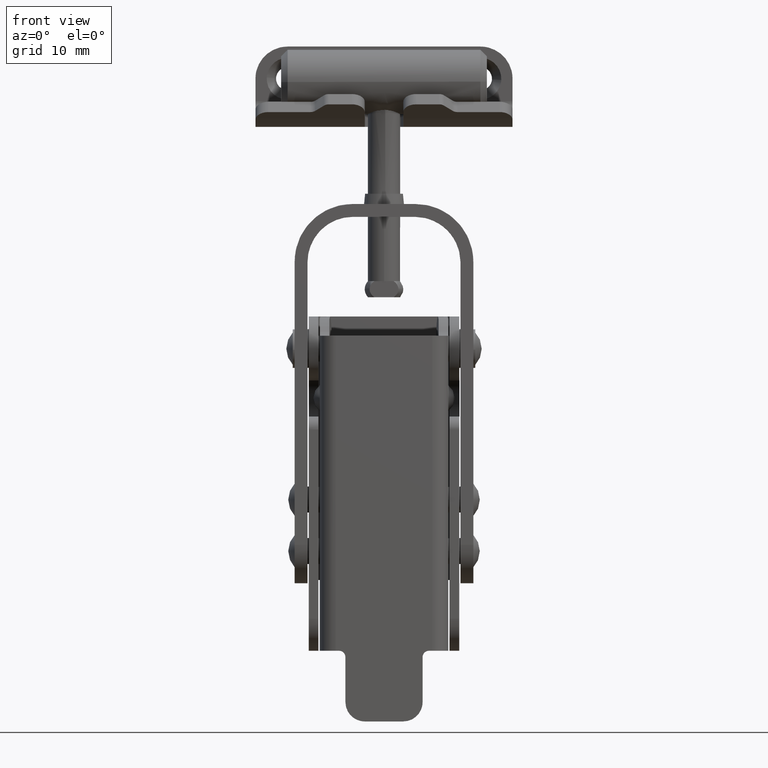
[diagram: clean part render]
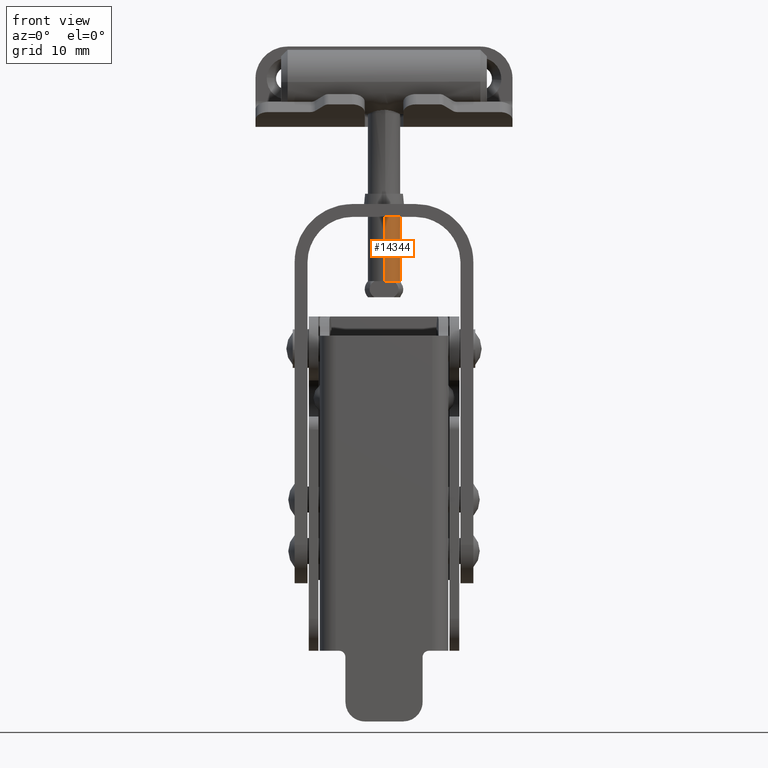
[diagram: same view with one face highlighted and labeled with its STEP entity id]
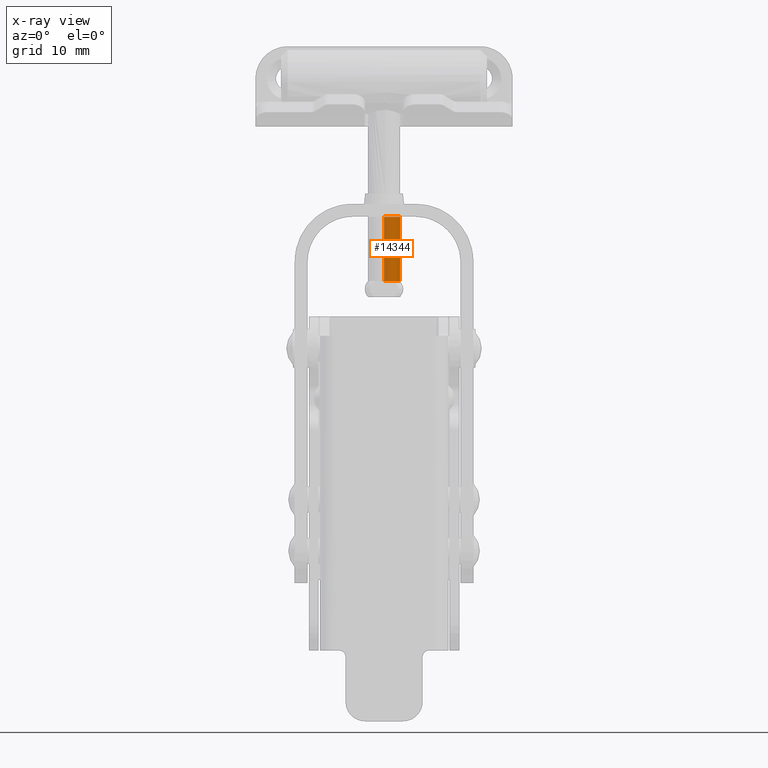
[diagram: x-ray of the same camera — body ghosted, the highlighted face saturated]
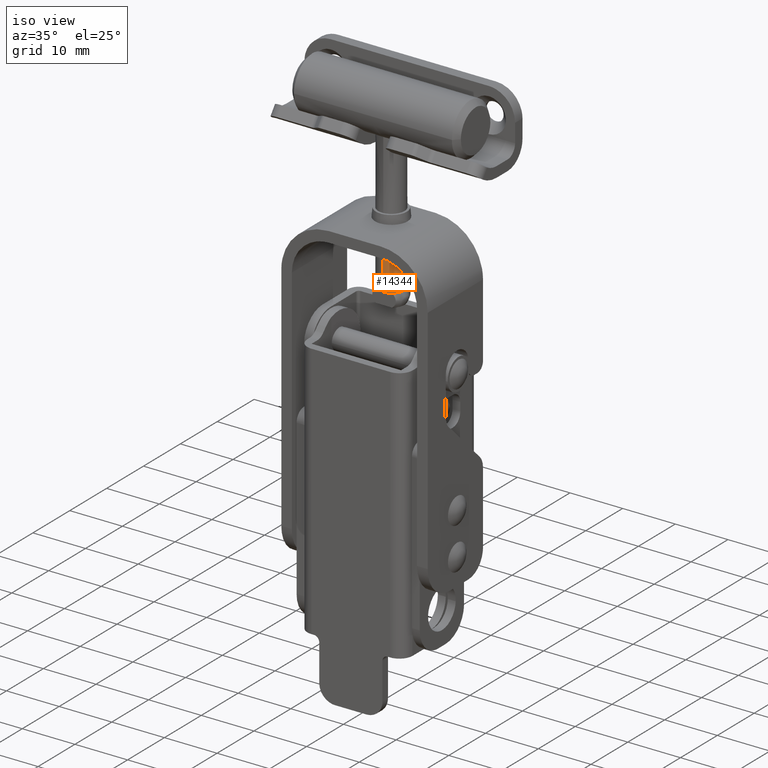
[diagram: same view with one face highlighted and labeled with its STEP entity id]
A machine part, front view. The second image highlights one B-rep face of the part: STEP entity #14344.
The next image is the same camera in x-ray: the body ghosted, the highlighted face saturated — about 0% of this face is hidden behind the body in this view.
A second angle (iso view) of the same face is appended — the face is thin or edge-on in the first view.
In plain terms, the highlighted face is a freeform B-spline surface patch.
Its self-contained STEP definition (entity closure, byte-faithful):
#13192=CARTESIAN_POINT('',(1.500000000000000,-5.0,18.500000003466049));
#13193=VERTEX_POINT('',#13192);
#13255=CARTESIAN_POINT('',(1.500000000000050,-9.0,18.500000003466049));
#13256=VERTEX_POINT('',#13255);
#13388=CARTESIAN_POINT('',(1.500000000000000,-5.0,18.500000003466049));
#13389=CARTESIAN_POINT('',(1.664236243239850,-5.123113325030843,18.500000003466031));
#13390=CARTESIAN_POINT('',(1.935803832532588,-5.384811232831665,18.500000003466081));
#13391=CARTESIAN_POINT('',(2.261540720034036,-5.882370314264942,18.500000003466059));
#13392=CARTESIAN_POINT('',(2.452415790731022,-6.409012371727478,18.500000003466042));
#13393=CARTESIAN_POINT('',(2.519754151118534,-6.987653915109714,18.500000003466070));
#13394=CARTESIAN_POINT('',(2.463161969635743,-7.543930691694025,18.500000003466049));
#13395=CARTESIAN_POINT('',(2.264374307097860,-8.118279147145360,18.500000003466081));
#13396=CARTESIAN_POINT('',(1.937571660352212,-8.617509513523086,18.500000003465949));
#13397=CARTESIAN_POINT('',(1.644897381691430,-8.891355687820504,18.500000003466209));
#13398=CARTESIAN_POINT('',(1.500000000000050,-9.0,18.500000003466049));
#13399=B_SPLINE_CURVE_WITH_KNOTS('',3,(#13388,#13389,#13390,#13391,#13392,#13393,#13394,#13395,#13396,#13397,#13398),.UNSPECIFIED.,.F.,.U.,(4,1,1,1,1,1,1,1,4),(0.000000211426577,0.615765962402910,1.122905892312607,1.774941539910145,2.282081645820571,2.861576109242598,3.441164338033892,4.093198953358128,4.636516642672792),.UNSPECIFIED.);
#13400=EDGE_CURVE('',#13193,#13256,#13399,.T.);
#13587=CARTESIAN_POINT('',(-0.027493427328492,-4.500151182280500,18.500000003466049));
#13588=VERTEX_POINT('',#13587);
#13602=CARTESIAN_POINT('',(-0.027493427328492,-4.500151182280500,18.500000003466049));
#13603=CARTESIAN_POINT('',(0.821091223636907,-4.490818417727588,18.500000003466052));
#13604=CARTESIAN_POINT('',(1.500000000000045,-4.999999999999941,18.500000003466049));
#13612=(BOUNDED_CURVE()B_SPLINE_CURVE(2,(#13602,#13603,#13604),.UNSPECIFIED.,.F.,.U.)B_SPLINE_CURVE_WITH_KNOTS((3,3),(0.491751722402769,1.0),.UNSPECIFIED.)CURVE()GEOMETRIC_REPRESENTATION_ITEM()RATIONAL_B_SPLINE_CURVE((0.900027213633328,0.898350344480554,1.0))REPRESENTATION_ITEM(''));
#13613=EDGE_CURVE('',#13588,#13193,#13612,.T.);
#13624=CARTESIAN_POINT('',(0.027493427328492,-9.499848817719496,18.500000003466049));
#13625=VERTEX_POINT('',#13624);
#13626=CARTESIAN_POINT('',(1.500000000000050,-9.0,18.500000003466049));
#13627=CARTESIAN_POINT('',(0.845530646775073,-9.490852014918774,18.500000003466052));
#13628=CARTESIAN_POINT('',(0.027493427328493,-9.499848817719595,18.500000003466049));
#13636=(BOUNDED_CURVE()B_SPLINE_CURVE(2,(#13626,#13627,#13628),.UNSPECIFIED.,.F.,.U.)B_SPLINE_CURVE_WITH_KNOTS((3,3),(0.0,0.491751722402773),.UNSPECIFIED.)CURVE()GEOMETRIC_REPRESENTATION_ITEM()RATIONAL_B_SPLINE_CURVE((1.0,0.901649655519443,0.900027213633326))REPRESENTATION_ITEM(''));
#13637=EDGE_CURVE('',#13256,#13625,#13636,.T.);
#14239=CARTESIAN_POINT('',(0.027492848150365,-9.499848824089284,28.500000003664940));
#14240=VERTEX_POINT('',#14239);
#14241=CARTESIAN_POINT('',(0.027492848150365,-9.499848824089284,28.500000003664940));
#14242=CARTESIAN_POINT('',(0.027493427328492,-9.499848817719496,18.500000003466049));
#14243=QUASI_UNIFORM_CURVE('',1,(#14241,#14242),.UNSPECIFIED.,.F.,.U.);
#14244=EDGE_CURVE('',#14240,#13625,#14243,.T.);
#14263=CARTESIAN_POINT('',(-0.027492848150365,-4.500151175910716,28.500000003664859));
#14264=VERTEX_POINT('',#14263);
#14278=CARTESIAN_POINT('',(-0.027492848150365,-4.500151175910716,28.500000003664859));
#14279=CARTESIAN_POINT('',(-0.027493427328492,-4.500151182280500,18.500000003466049));
#14280=QUASI_UNIFORM_CURVE('',1,(#14278,#14279),.UNSPECIFIED.,.F.,.U.);
#14281=EDGE_CURVE('',#14264,#13588,#14280,.T.);
#14289=CARTESIAN_POINT('',(-0.027492847580589,-4.500151175904449,28.750000003673509));
#14290=CARTESIAN_POINT('',(2.472355976514962,-4.472658328323862,28.750000003673513));
#14291=CARTESIAN_POINT('',(2.499848824095551,-6.972507152419412,28.750000003673509));
#14292=CARTESIAN_POINT('',(2.527341671676139,-9.472355976514962,28.750000003673513));
#14293=CARTESIAN_POINT('',(0.027492847580589,-9.499848824095551,28.750000003673509));
#14294=CARTESIAN_POINT('',(-0.027492847580589,-4.500151175904449,18.243750003460860));
#14295=CARTESIAN_POINT('',(2.472355976514962,-4.472658328323862,18.243750003460853));
#14296=CARTESIAN_POINT('',(2.499848824095551,-6.972507152419412,18.243750003460860));
#14297=CARTESIAN_POINT('',(2.527341671676139,-9.472355976514962,18.243750003460853));
#14298=CARTESIAN_POINT('',(0.027492847580589,-9.499848824095551,18.243750003460860));
#14306=(BOUNDED_SURFACE()B_SPLINE_SURFACE(2,1,((#14289,#14294),(#14290,#14295),(#14291,#14296),(#14292,#14297),(#14293,#14298)),.UNSPECIFIED.,.F.,.F.,.U.)B_SPLINE_SURFACE_WITH_KNOTS((3,2,3),(2,2),(0.0,4.142135623730950,8.284271247461900),(0.0,10.506250000212651),.UNSPECIFIED.)GEOMETRIC_REPRESENTATION_ITEM()RATIONAL_B_SPLINE_SURFACE(((1.0,1.0),(0.707106781186548,0.707106781186548),(1.0,1.0),(0.707106781186548,0.707106781186548),(1.0,1.0)))REPRESENTATION_ITEM('')SURFACE());
#14307=ORIENTED_EDGE('',*,*,#13637,.F.);
#14308=ORIENTED_EDGE('',*,*,#13400,.F.);
#14309=ORIENTED_EDGE('',*,*,#13613,.F.);
#14310=ORIENTED_EDGE('',*,*,#14281,.F.);
#14311=CARTESIAN_POINT('',(2.500000000000000,-7.0,28.500000003668450));
#14312=VERTEX_POINT('',#14311);
#14313=CARTESIAN_POINT('',(-0.027492848150365,-4.500151175910716,28.500000003664859));
#14314=CARTESIAN_POINT('',(-0.013746839713385,-4.500000000000001,28.500000003664884));
#14315=CARTESIAN_POINT('',(0.0,-4.500000000000001,28.500000003664901));
#14316=CARTESIAN_POINT('',(2.500000000000000,-4.500000000000002,28.500000003668447));
#14317=CARTESIAN_POINT('',(2.500000000000000,-7.0,28.500000003668450));
#14325=(BOUNDED_CURVE()B_SPLINE_CURVE(2,(#14313,#14314,#14315,#14316,#14317),.UNSPECIFIED.,.F.,.U.)B_SPLINE_CURVE_WITH_KNOTS((3,2,3),(0.248060321195086,0.250000000000000,0.500000000000000),.UNSPECIFIED.)CURVE()GEOMETRIC_REPRESENTATION_ITEM()RATIONAL_B_SPLINE_CURVE((0.995490312824811,0.997727524925458,1.0,0.707106781186548,1.0))REPRESENTATION_ITEM(''));
#14326=EDGE_CURVE('',#14264,#14312,#14325,.T.);
#14327=ORIENTED_EDGE('',*,*,#14326,.T.);
#14328=CARTESIAN_POINT('',(2.500000000000000,-7.0,28.500000003668450));
#14329=CARTESIAN_POINT('',(2.500000000000000,-9.472656674299484,28.500000003668447));
#14330=CARTESIAN_POINT('',(0.027492848150365,-9.499848824089284,28.500000003664940));
#14338=(BOUNDED_CURVE()B_SPLINE_CURVE(2,(#14328,#14329,#14330),.UNSPECIFIED.,.F.,.U.)B_SPLINE_CURVE_WITH_KNOTS((3,3),(0.500000000000000,0.748060321195086),.UNSPECIFIED.)CURVE()GEOMETRIC_REPRESENTATION_ITEM()RATIONAL_B_SPLINE_CURVE((1.0,0.709379256261089,0.995490312824811))REPRESENTATION_ITEM(''));
#14339=EDGE_CURVE('',#14312,#14240,#14338,.T.);
#14340=ORIENTED_EDGE('',*,*,#14339,.T.);
#14341=ORIENTED_EDGE('',*,*,#14244,.T.);
#14342=EDGE_LOOP('',(#14307,#14308,#14309,#14310,#14327,#14340,#14341));
#14343=FACE_OUTER_BOUND('',#14342,.T.);
#14344=ADVANCED_FACE('',(#14343),#14306,.T.);